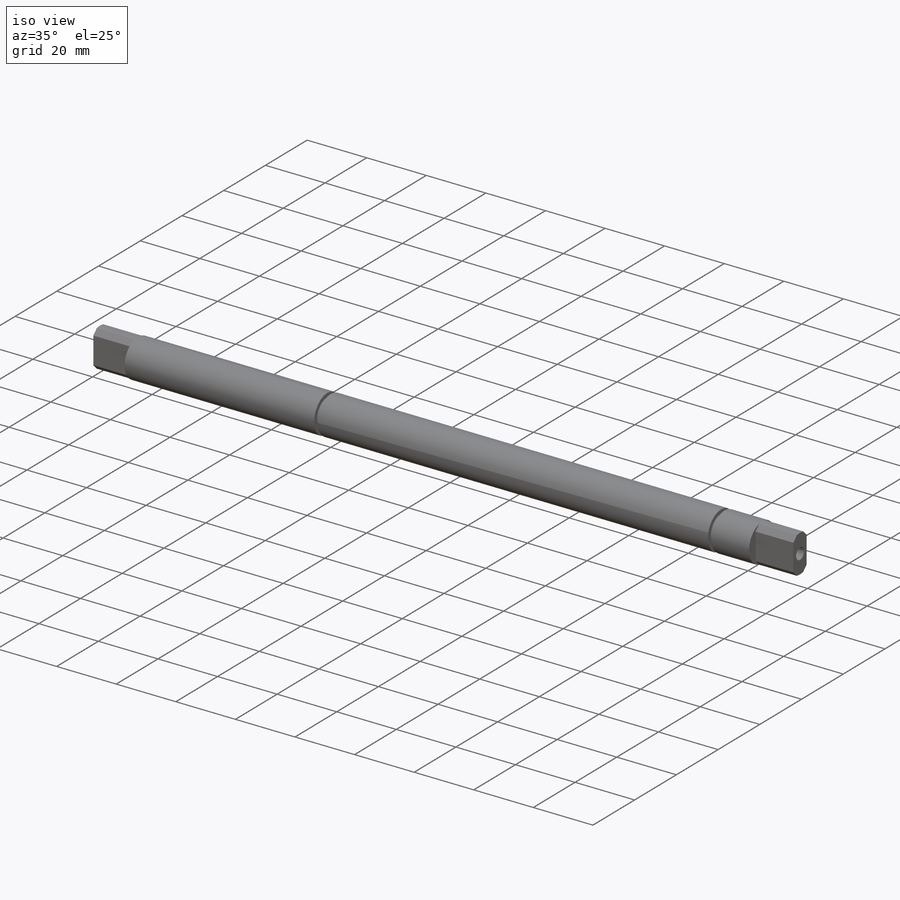
[diagram: iso view]
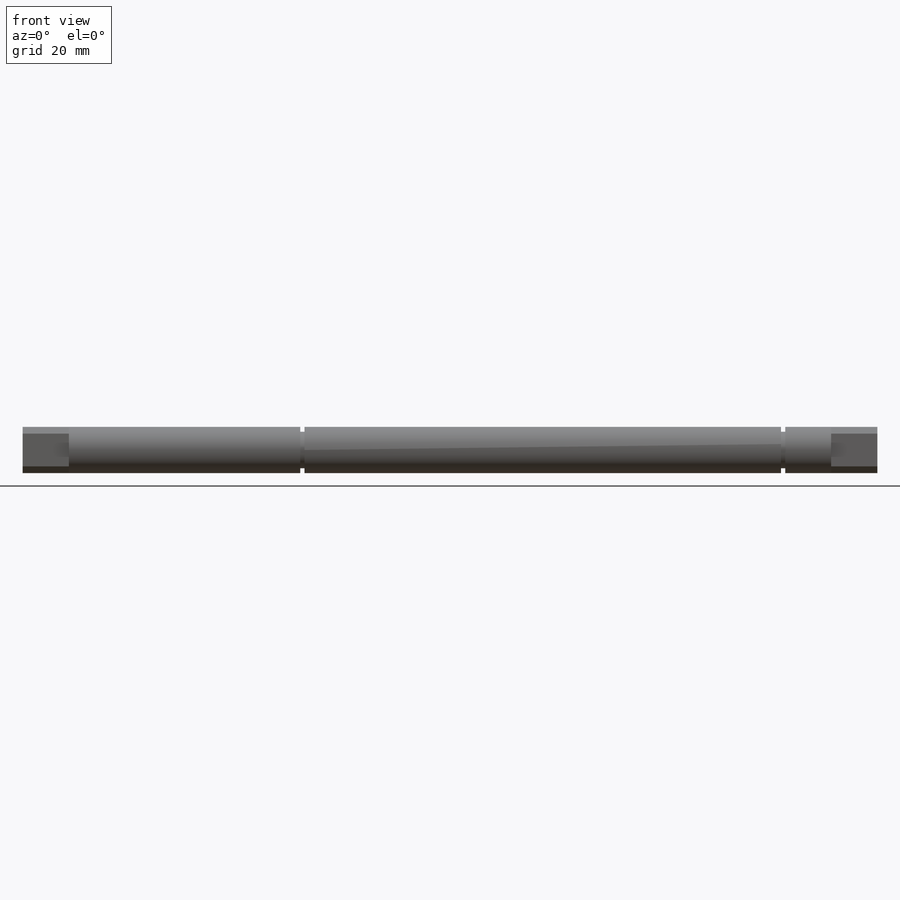
[diagram: front view]
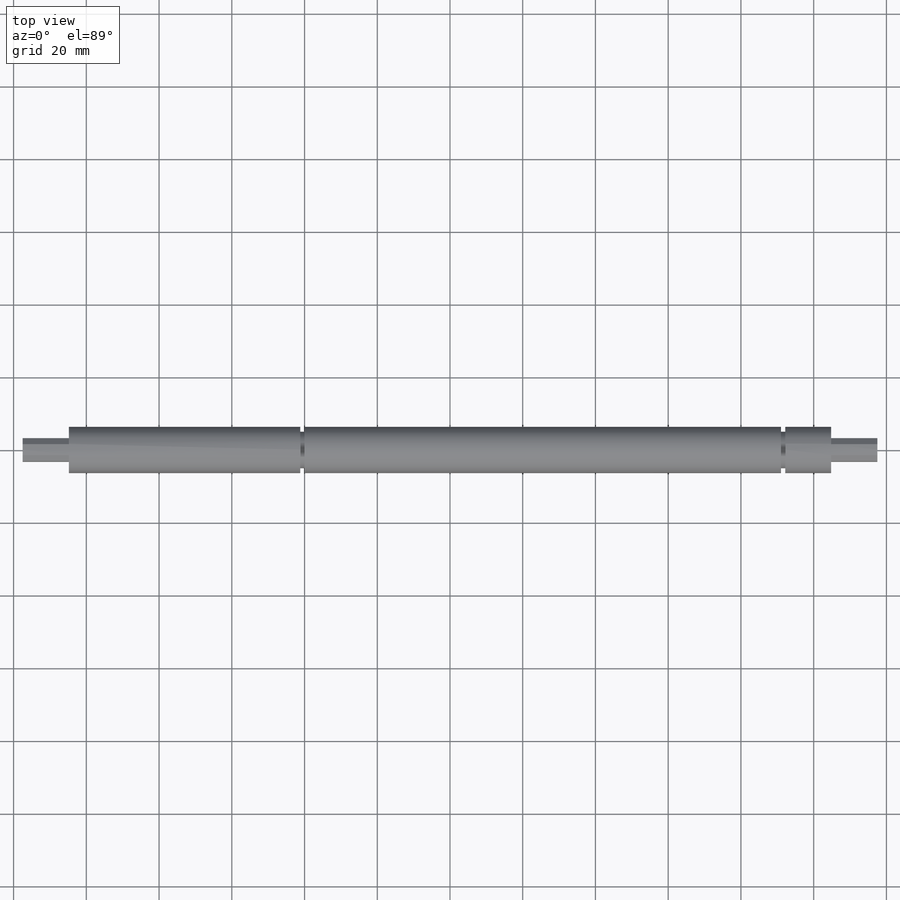
[diagram: top view]
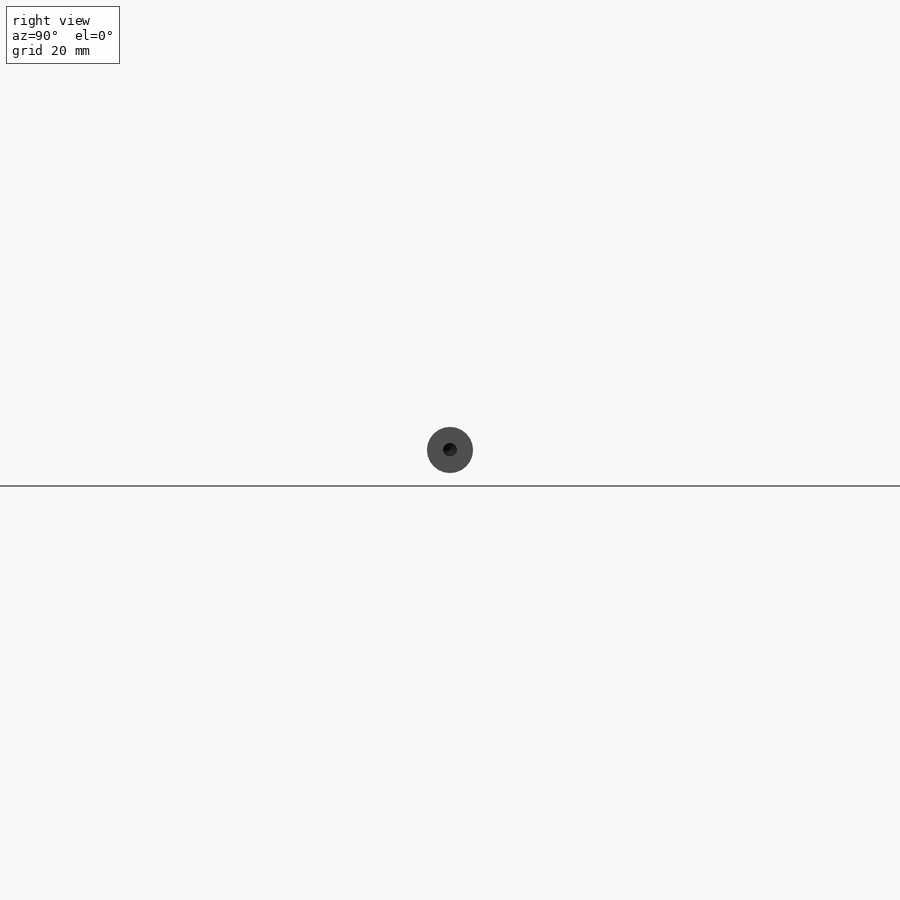
[diagram: right view]
SOLIDWORKS PART (.sldprt)
format: sldprt  version: not decoded by parser v0  size: 360,960 bytes
history: native  units: mm
features: sketch x5, chamfer x2, mirror x2, material x1, extrude x1, cut_extrude x1, hole x1, thread x1, cut_revolve x1 (+11 scaffold rows collapsed)
feature tree (26):
  scaffold x11  (default folders/planes/origin — collapsed)
  material  "Material <not specified>"
  sketch  "Sketch1"  dims[D1=12.7mm]
  extrude  "Boss-Extrude1"  Depth=58mm
  sketch  "Sketch2"  dims[D1=6.35mm]
  cut_extrude  "Cut-Extrude1"  Depth=12.7mm
  chamfer  "Chamfer1"  Distance=1mm Angle=45deg
  mirror  "Mirror1"
  chamfer  "Chamfer2"  Distance=1mm Angle=45deg
  hole  "#10-24 Tapped Hole1"  Diameter=3.7973mm Depth=14.95mm
  sketch  "Sketch5"
  sketch  "Sketch4"  dims[hole-wizard template sketch: 50 standard entries collapsed; hole parameters above]
  thread  "Hole Thread1"  Diameter=9.65mm  [1 undecoded]
  mirror  "Mirror2"
  sketch  "Sketch6"  dims[D1=1.3208mm D2=1.1684mm D3=26.5mm D4=157.5mm]
  cut_revolve  "Cut-Revolve1"  Angle=360deg
decode coverage: 11 of 14 modeling features carry decoded parameters
note: ~ marks probable driven/reference dimensions
note: 1 parameter value undecoded
note: suppression state not decoded; provenance and decode notes live in map.json
